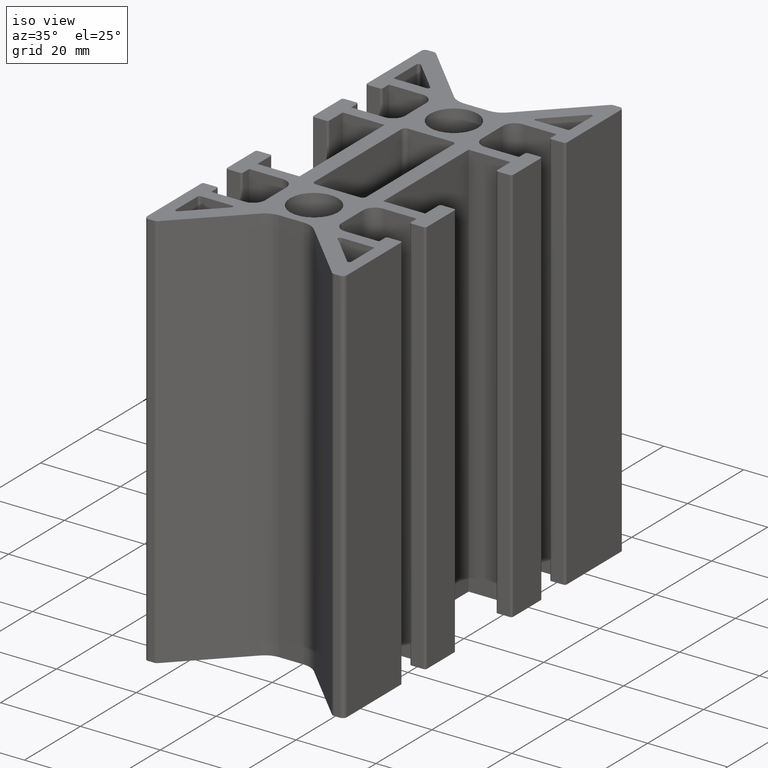
[diagram: clean part render]
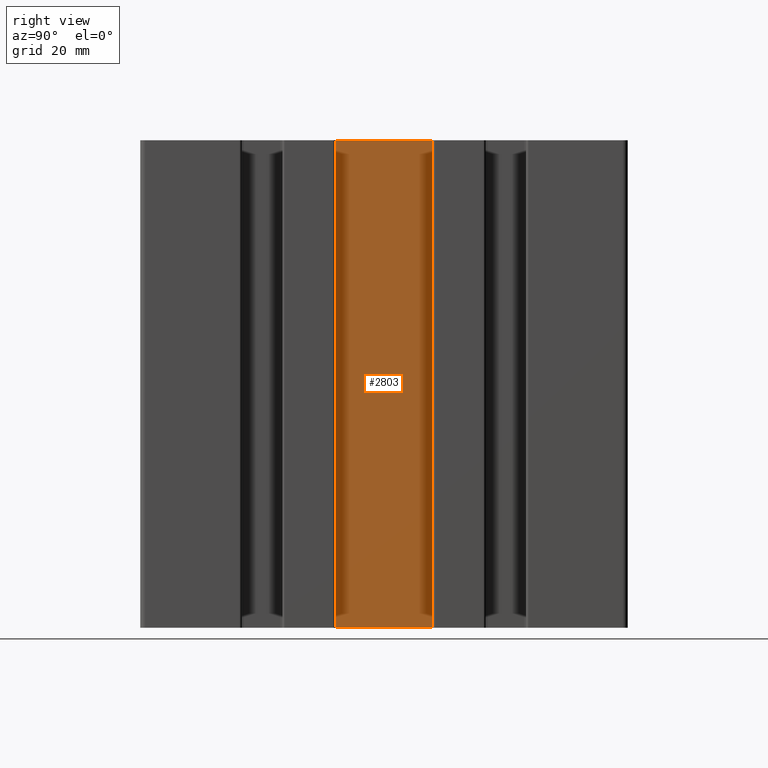
[diagram: tour spotlight — one face highlighted and labeled with its STEP entity id]
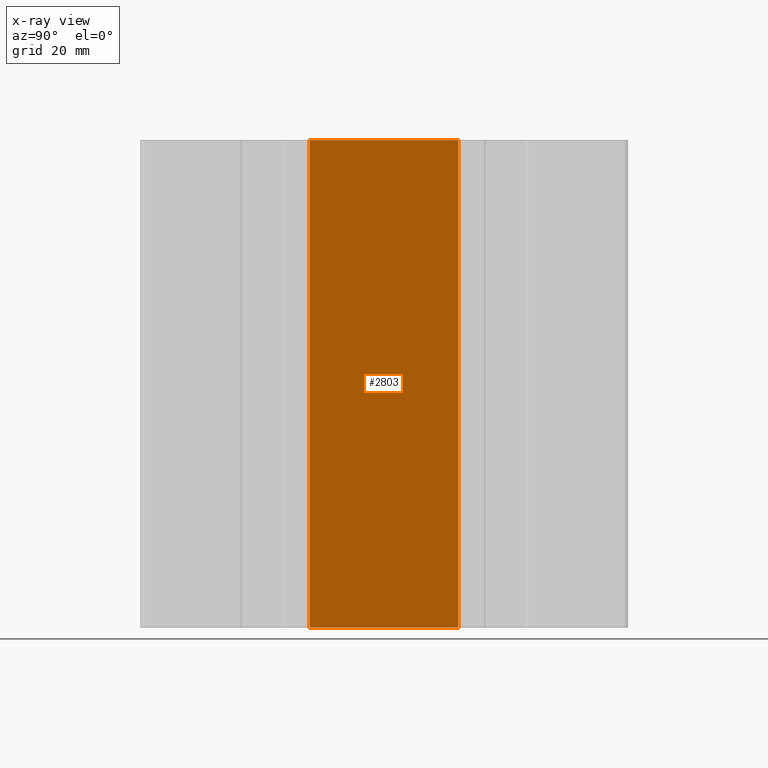
[diagram: x-ray of the same camera — body ghosted, this tour face saturated]
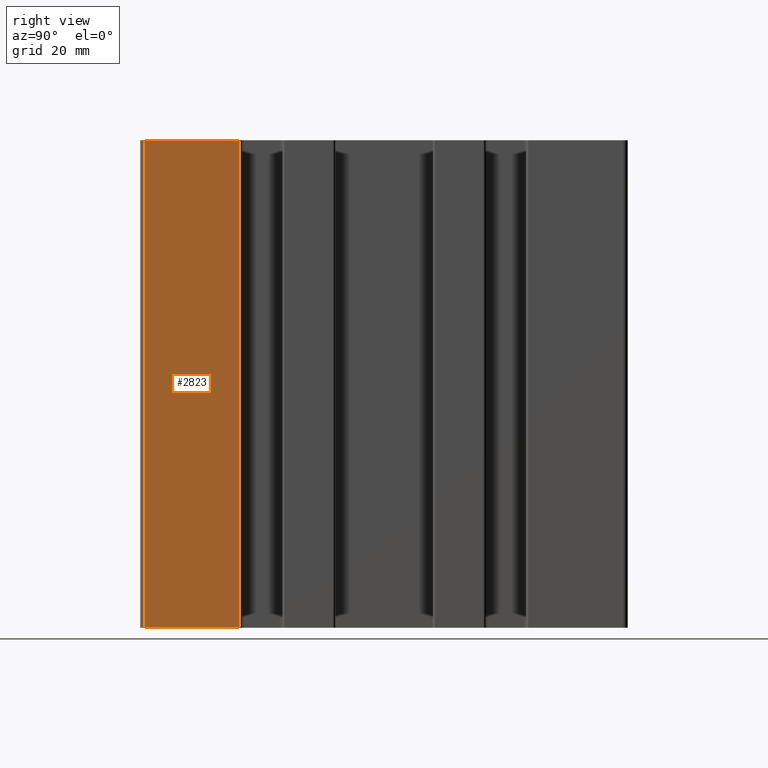
[diagram: tour spotlight — one face highlighted and labeled with its STEP entity id]
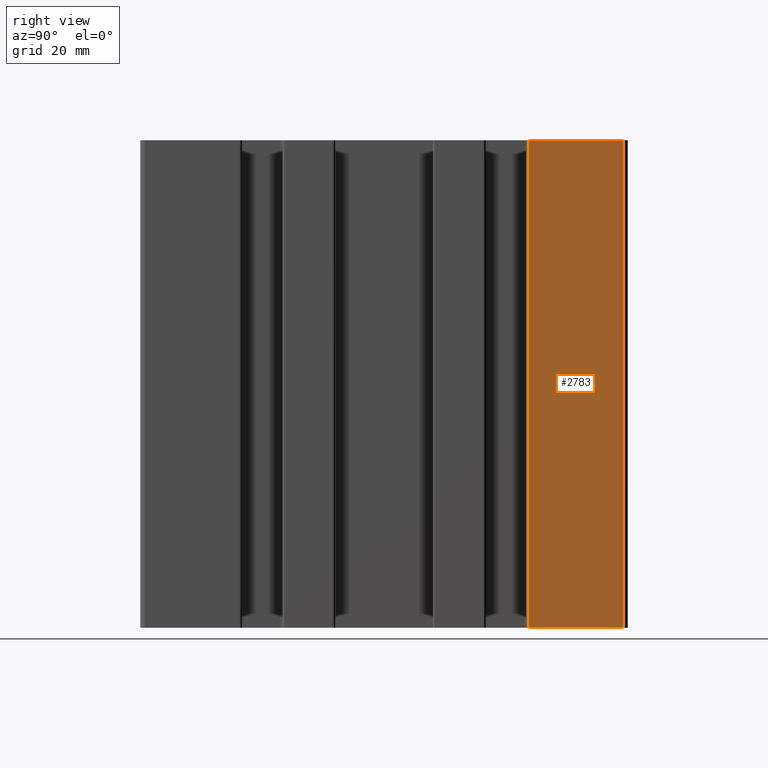
[diagram: tour spotlight — one face highlighted and labeled with its STEP entity id]
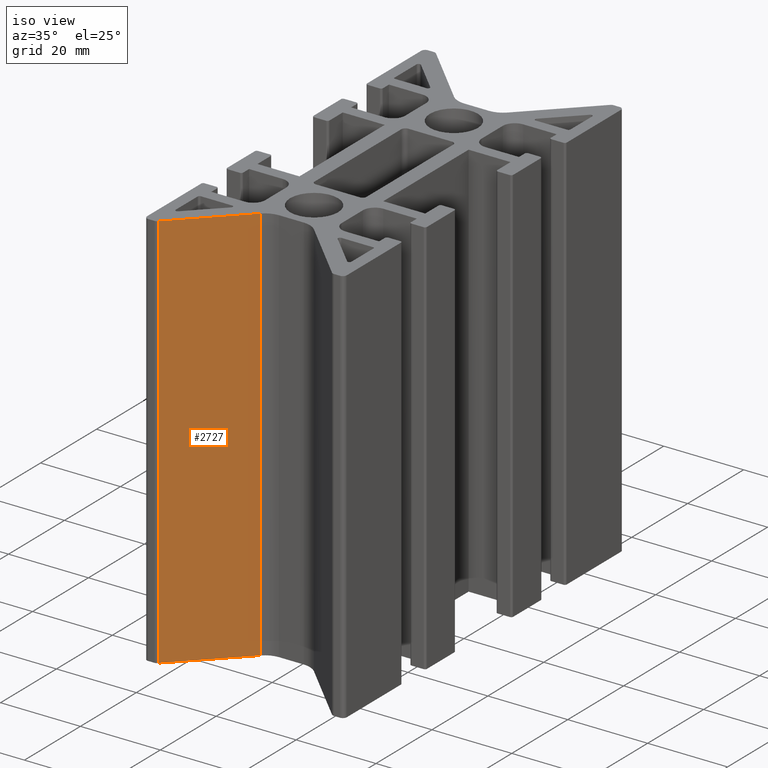
[diagram: tour spotlight — one face highlighted and labeled with its STEP entity id]
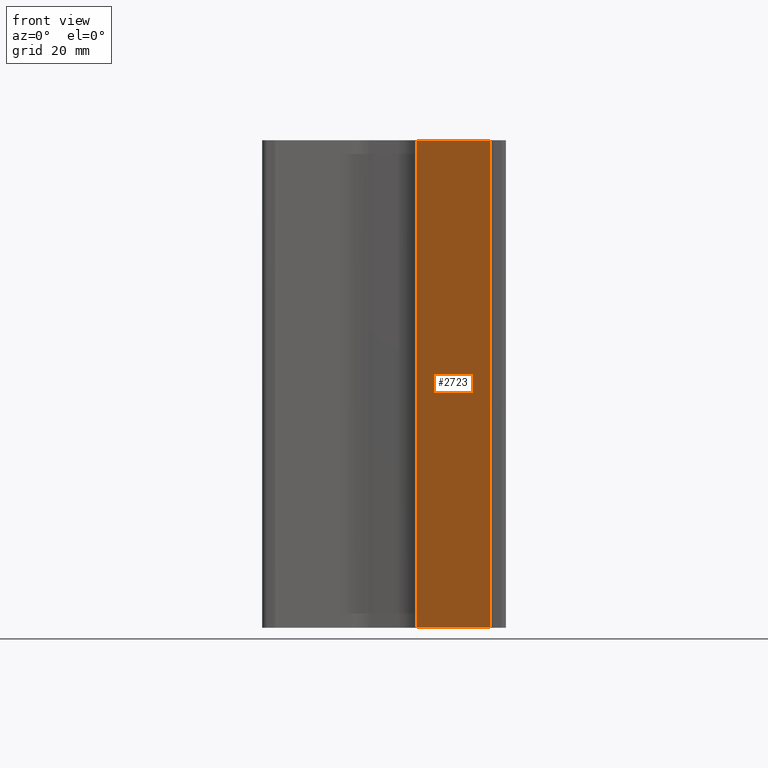
[diagram: tour spotlight — one face highlighted and labeled with its STEP entity id]
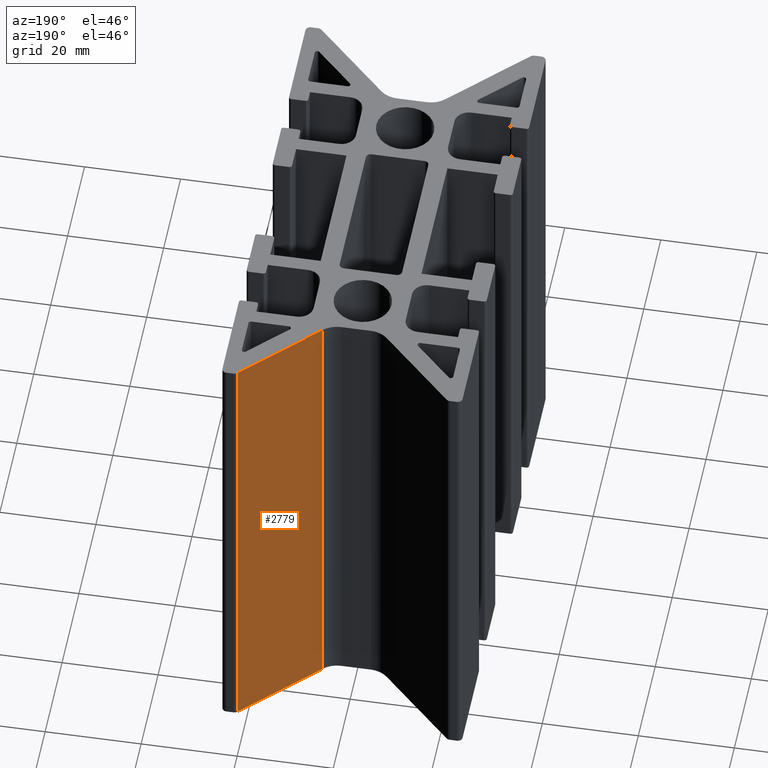
[diagram: tour spotlight — one face highlighted and labeled with its STEP entity id]
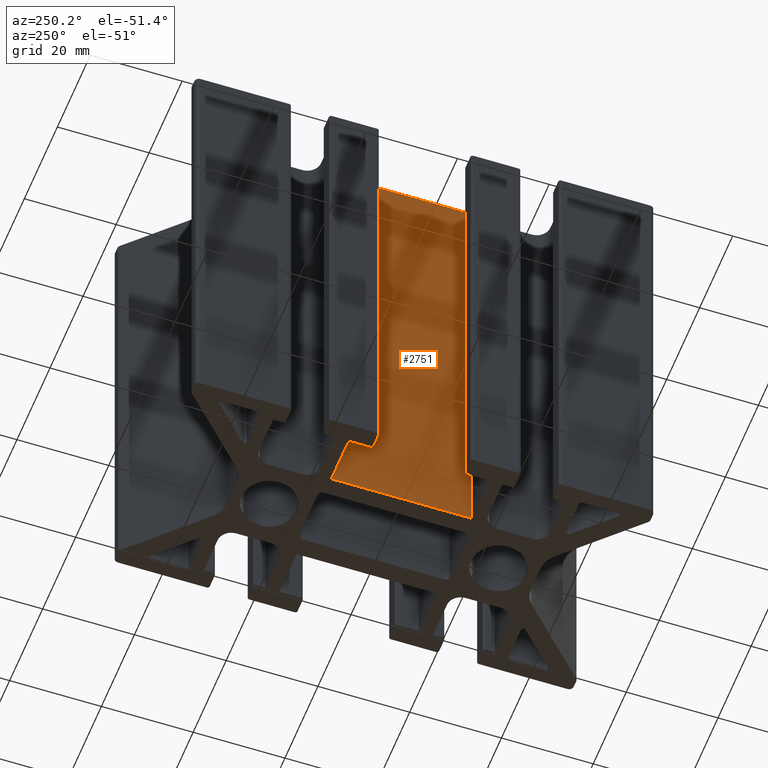
[diagram: tour spotlight — one face highlighted and labeled with its STEP entity id]
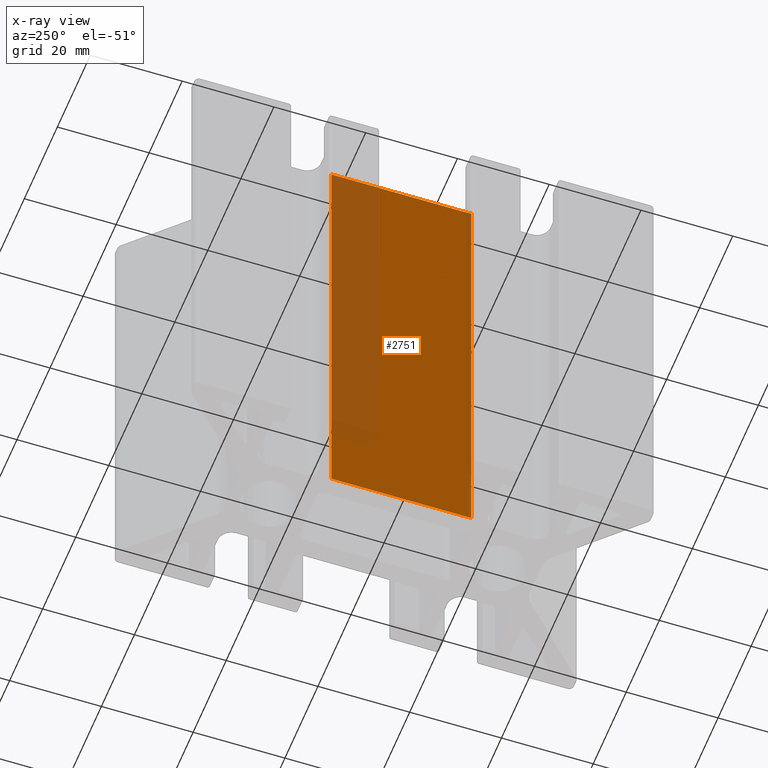
[diagram: x-ray of the same camera — body ghosted, this tour face saturated]
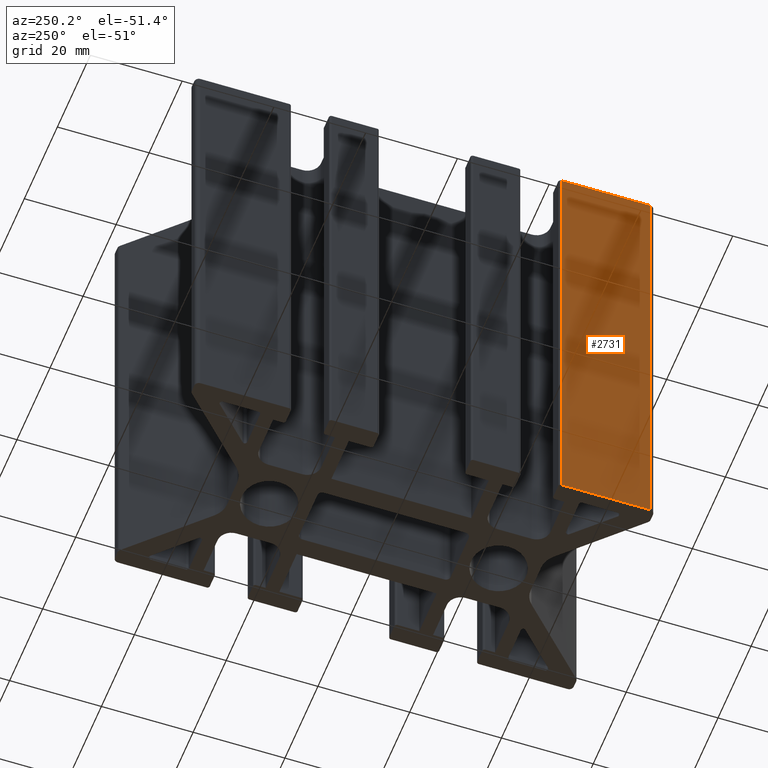
[diagram: tour spotlight — one face highlighted and labeled with its STEP entity id]
A machine part: a face-by-face anatomy tour. The part has 140 B-rep faces; the first image is the clean iso view, then the 8 largest visible faces are spotlighted one at a time (largest first), each with its STEP entity span.

Face 1 — right view, entity #2803. An x-ray twin of the same camera follows (body ghosted, this face saturated) — the face is partly hidden behind the body. In plain terms, the highlighted planar face has unit normal (1, 0, 0).
Definition (entity closure, byte-faithful):
#93=PLANE('',#3082);
#225=FACE_OUTER_BOUND('',#372,.T.);
#372=EDGE_LOOP('',(#2401,#2402,#2403,#2404));
#639=LINE('',#4308,#929);
#781=LINE('',#4679,#1071);
#782=LINE('',#4682,#1072);
#783=LINE('',#4683,#1073);
#929=VECTOR('',#3442,10.);
#1071=VECTOR('',#3838,10.);
#1072=VECTOR('',#3841,10.);
#1073=VECTOR('',#3842,10.);
#1257=VERTEX_POINT('',#4305);
#1258=VERTEX_POINT('',#4307);
#1360=VERTEX_POINT('',#4677);
#1361=VERTEX_POINT('',#4681);
#1567=EDGE_CURVE('',#1257,#1258,#639,.T.);
#1753=EDGE_CURVE('',#1257,#1360,#781,.T.);
#1754=EDGE_CURVE('',#1361,#1360,#782,.T.);
#1755=EDGE_CURVE('',#1258,#1361,#783,.T.);
#2401=ORIENTED_EDGE('',*,*,#1753,.T.);
#2402=ORIENTED_EDGE('',*,*,#1754,.F.);
#2403=ORIENTED_EDGE('',*,*,#1755,.F.);
#2404=ORIENTED_EDGE('',*,*,#1567,.F.);
#2803=ADVANCED_FACE('',(#225),#93,.T.);
#3082=AXIS2_PLACEMENT_3D('',#4680,#3839,#3840);
#3442=DIRECTION('',(2.18404529434441E-16,-1.,0.));
#3838=DIRECTION('',(0.,0.,1.));
#3839=DIRECTION('center_axis',(1.,2.18404529434441E-16,0.));
#3840=DIRECTION('ref_axis',(-2.18404529434441E-16,1.,0.));
#3841=DIRECTION('',(-2.18404529434441E-16,1.,0.));
#3842=DIRECTION('',(0.,0.,1.));
#4305=CARTESIAN_POINT('',(10.4999999999788,15.2500000000016,-50.));
#4307=CARTESIAN_POINT('',(10.4999999999788,-15.2500000000005,-50.));
#4308=CARTESIAN_POINT('',(10.4999999999788,-15.2500000000005,-50.));
#4677=CARTESIAN_POINT('',(10.4999999999788,15.2500000000016,50.));
#4679=CARTESIAN_POINT('',(10.4999999999788,15.2500000000016,0.));
#4680=CARTESIAN_POINT('Origin',(10.4999999999788,-15.2500000000005,0.));
#4681=CARTESIAN_POINT('',(10.4999999999788,-15.2500000000005,50.));
#4682=CARTESIAN_POINT('',(10.4999999999788,-15.2500000000005,50.));
#4683=CARTESIAN_POINT('',(10.4999999999788,-15.2500000000005,0.));

Face 2 — right view, entity #2823. In plain terms, the highlighted planar face has unit normal (1, 0, 0).
Definition (entity closure, byte-faithful):
#105=PLANE('',#3110);
#245=FACE_OUTER_BOUND('',#392,.T.);
#392=EDGE_LOOP('',(#2481,#2482,#2483,#2484));
#591=LINE('',#4140,#881);
#651=LINE('',#4348,#941);
#813=LINE('',#4759,#1103);
#814=LINE('',#4761,#1104);
#881=VECTOR('',#3322,10.);
#941=VECTOR('',#3472,10.);
#1103=VECTOR('',#3926,10.);
#1104=VECTOR('',#3929,10.);
#1173=VERTEX_POINT('',#4138);
#1174=VERTEX_POINT('',#4139);
#1277=VERTEX_POINT('',#4347);
#1380=VERTEX_POINT('',#4757);
#1483=EDGE_CURVE('',#1173,#1174,#591,.T.);
#1587=EDGE_CURVE('',#1277,#1174,#651,.T.);
#1793=EDGE_CURVE('',#1173,#1380,#813,.T.);
#1794=EDGE_CURVE('',#1277,#1380,#814,.T.);
#2481=ORIENTED_EDGE('',*,*,#1793,.T.);
#2482=ORIENTED_EDGE('',*,*,#1794,.F.);
#2483=ORIENTED_EDGE('',*,*,#1587,.T.);
#2484=ORIENTED_EDGE('',*,*,#1483,.F.);
#2823=ADVANCED_FACE('',(#245),#105,.T.);
#3110=AXIS2_PLACEMENT_3D('',#4760,#3927,#3928);
#3322=DIRECTION('',(4.59006935245935E-16,-1.,0.));
#3472=DIRECTION('',(0.,0.,-1.));
#3926=DIRECTION('',(0.,0.,1.));
#3927=DIRECTION('center_axis',(1.,4.59006935245935E-16,0.));
#3928=DIRECTION('ref_axis',(-4.59006935245935E-16,1.,0.));
#3929=DIRECTION('',(-4.59006935245935E-16,1.,0.));
#4138=CARTESIAN_POINT('',(24.9999999999838,-29.6499999999862,-50.));
#4139=CARTESIAN_POINT('',(24.9999999999838,-48.9999999999697,-50.));
#4140=CARTESIAN_POINT('',(24.9999999999838,-48.9999999999697,-50.));
#4347=CARTESIAN_POINT('',(24.9999999999838,-48.9999999999697,50.));
#4348=CARTESIAN_POINT('',(24.9999999999838,-48.9999999999697,0.));
#4757=CARTESIAN_POINT('',(24.9999999999838,-29.6499999999862,50.));
#4759=CARTESIAN_POINT('',(24.9999999999838,-29.6499999999862,0.));
#4760=CARTESIAN_POINT('Origin',(24.9999999999838,-48.9999999999697,0.));
#4761=CARTESIAN_POINT('',(24.9999999999838,-48.9999999999697,50.));

Face 3 — right view, entity #2783. In plain terms, the highlighted planar face has unit normal (1, 0, 0).
Definition (entity closure, byte-faithful):
#81=PLANE('',#3054);
#205=FACE_OUTER_BOUND('',#352,.T.);
#352=EDGE_LOOP('',(#2321,#2322,#2323,#2324));
#627=LINE('',#4268,#917);
#749=LINE('',#4599,#1039);
#750=LINE('',#4602,#1040);
#751=LINE('',#4603,#1041);
#917=VECTOR('',#3414,10.);
#1039=VECTOR('',#3750,10.);
#1040=VECTOR('',#3753,10.);
#1041=VECTOR('',#3754,10.);
#1237=VERTEX_POINT('',#4265);
#1238=VERTEX_POINT('',#4267);
#1340=VERTEX_POINT('',#4597);
#1341=VERTEX_POINT('',#4601);
#1547=EDGE_CURVE('',#1237,#1238,#627,.T.);
#1713=EDGE_CURVE('',#1237,#1340,#749,.T.);
#1714=EDGE_CURVE('',#1341,#1340,#750,.T.);
#1715=EDGE_CURVE('',#1238,#1341,#751,.T.);
#2321=ORIENTED_EDGE('',*,*,#1713,.T.);
#2322=ORIENTED_EDGE('',*,*,#1714,.F.);
#2323=ORIENTED_EDGE('',*,*,#1715,.F.);
#2324=ORIENTED_EDGE('',*,*,#1547,.F.);
#2783=ADVANCED_FACE('',(#205),#81,.T.);
#3054=AXIS2_PLACEMENT_3D('',#4600,#3751,#3752);
#3414=DIRECTION('',(2.29503467622934E-16,-1.,0.));
#3750=DIRECTION('',(0.,0.,1.));
#3751=DIRECTION('center_axis',(1.,2.29503467622934E-16,0.));
#3752=DIRECTION('ref_axis',(-2.29503467622934E-16,1.,0.));
#3753=DIRECTION('',(-2.29503467622934E-16,1.,0.));
#3754=DIRECTION('',(0.,0.,1.));
#4265=CARTESIAN_POINT('',(24.9999999999838,48.9999999999982,-50.));
#4267=CARTESIAN_POINT('',(24.9999999999838,29.650000000012,-50.));
#4268=CARTESIAN_POINT('',(24.9999999999838,29.650000000012,-50.));
#4597=CARTESIAN_POINT('',(24.9999999999838,48.9999999999982,50.));
#4599=CARTESIAN_POINT('',(24.9999999999838,48.9999999999982,0.));
#4600=CARTESIAN_POINT('Origin',(24.9999999999838,29.650000000012,0.));
#4601=CARTESIAN_POINT('',(24.9999999999838,29.650000000012,50.));
#4602=CARTESIAN_POINT('',(24.9999999999838,29.650000000012,50.));
#4603=CARTESIAN_POINT('',(24.9999999999838,29.650000000012,0.));

Face 4 — iso view, entity #2727. In plain terms, the highlighted planar face has unit normal (0.7071, -0.7071, 0).
Definition (entity closure, byte-faithful):
#49=PLANE('',#2974);
#149=FACE_OUTER_BOUND('',#296,.T.);
#296=EDGE_LOOP('',(#2097,#2098,#2099,#2100));
#595=LINE('',#4156,#885);
#661=LINE('',#4375,#951);
#662=LINE('',#4378,#952);
#663=LINE('',#4379,#953);
#885=VECTOR('',#3334,10.);
#951=VECTOR('',#3502,10.);
#952=VECTOR('',#3505,10.);
#953=VECTOR('',#3506,10.);
#1181=VERTEX_POINT('',#4153);
#1182=VERTEX_POINT('',#4155);
#1284=VERTEX_POINT('',#4373);
#1285=VERTEX_POINT('',#4377);
#1491=EDGE_CURVE('',#1181,#1182,#595,.T.);
#1601=EDGE_CURVE('',#1181,#1284,#661,.T.);
#1602=EDGE_CURVE('',#1285,#1284,#662,.T.);
#1603=EDGE_CURVE('',#1182,#1285,#663,.T.);
#2097=ORIENTED_EDGE('',*,*,#1601,.T.);
#2098=ORIENTED_EDGE('',*,*,#1602,.F.);
#2099=ORIENTED_EDGE('',*,*,#1603,.F.);
#2100=ORIENTED_EDGE('',*,*,#1491,.F.);
#2727=ADVANCED_FACE('',(#149),#49,.T.);
#2974=AXIS2_PLACEMENT_3D('',#4376,#3503,#3504);
#3334=DIRECTION('',(-0.707106781186628,-0.707106781186467,0.));
#3502=DIRECTION('',(0.,0.,1.));
#3503=DIRECTION('center_axis',(0.707106781186467,-0.707106781186628,0.));
#3504=DIRECTION('ref_axis',(0.707106781186628,0.707106781186467,0.));
#3505=DIRECTION('',(0.707106781186628,0.707106781186467,0.));
#3506=DIRECTION('',(0.,0.,1.));
#4153=CARTESIAN_POINT('',(-6.6530066017581,-34.5644660940794,-50.));
#4155=CARTESIAN_POINT('',(-21.7501621446448,-49.6616216369626,-50.));
#4156=CARTESIAN_POINT('',(-21.7501621446448,-49.6616216369626,-50.));
#4373=CARTESIAN_POINT('',(-6.6530066017581,-34.5644660940794,50.));
#4375=CARTESIAN_POINT('',(-6.6530066017581,-34.5644660940794,0.));
#4376=CARTESIAN_POINT('Origin',(-21.7501621446448,-49.6616216369626,0.));
#4377=CARTESIAN_POINT('',(-21.7501621446448,-49.6616216369626,50.));
#4378=CARTESIAN_POINT('',(-21.7501621446448,-49.6616216369626,50.));
#4379=CARTESIAN_POINT('',(-21.7501621446448,-49.6616216369626,0.));

Face 5 — front view, entity #2723. In plain terms, the highlighted planar face has unit normal (-0.7071, -0.7071, 0).
Definition (entity closure, byte-faithful):
#47=PLANE('',#2968);
#145=FACE_OUTER_BOUND('',#292,.T.);
#292=EDGE_LOOP('',(#2081,#2082,#2083,#2084));
#593=LINE('',#4148,#883);
#655=LINE('',#4359,#945);
#656=LINE('',#4362,#946);
#657=LINE('',#4363,#947);
#883=VECTOR('',#3328,10.);
#945=VECTOR('',#3484,10.);
#946=VECTOR('',#3487,10.);
#947=VECTOR('',#3488,10.);
#1177=VERTEX_POINT('',#4145);
#1178=VERTEX_POINT('',#4147);
#1280=VERTEX_POINT('',#4357);
#1281=VERTEX_POINT('',#4361);
#1487=EDGE_CURVE('',#1177,#1178,#593,.T.);
#1593=EDGE_CURVE('',#1177,#1280,#655,.T.);
#1594=EDGE_CURVE('',#1281,#1280,#656,.T.);
#1595=EDGE_CURVE('',#1178,#1281,#657,.T.);
#2081=ORIENTED_EDGE('',*,*,#1593,.T.);
#2082=ORIENTED_EDGE('',*,*,#1594,.F.);
#2083=ORIENTED_EDGE('',*,*,#1595,.F.);
#2084=ORIENTED_EDGE('',*,*,#1487,.F.);
#2723=ADVANCED_FACE('',(#145),#47,.T.);
#2968=AXIS2_PLACEMENT_3D('',#4360,#3485,#3486);
#3328=DIRECTION('',(-0.707106781186468,0.707106781186628,0.));
#3484=DIRECTION('',(0.,0.,1.));
#3485=DIRECTION('center_axis',(-0.707106781186628,-0.707106781186468,0.));
#3486=DIRECTION('ref_axis',(0.707106781186468,-0.707106781186628,0.));
#3487=DIRECTION('',(0.707106781186468,-0.707106781186628,0.));
#3488=DIRECTION('',(0.,0.,1.));
#4145=CARTESIAN_POINT('',(21.7501621461486,-49.6616216387617,-50.));
#4147=CARTESIAN_POINT('',(6.65300660147049,-34.5644660940802,-50.));
#4148=CARTESIAN_POINT('',(6.65300660147049,-34.5644660940802,-50.));
#4357=CARTESIAN_POINT('',(21.7501621461486,-49.6616216387617,50.));
#4359=CARTESIAN_POINT('',(21.7501621461486,-49.6616216387617,0.));
#4360=CARTESIAN_POINT('Origin',(6.65300660147049,-34.5644660940802,0.));
#4361=CARTESIAN_POINT('',(6.65300660147049,-34.5644660940802,50.));
#4362=CARTESIAN_POINT('',(6.65300660147049,-34.5644660940802,50.));
#4363=CARTESIAN_POINT('',(6.65300660147049,-34.5644660940802,0.));

Face 6 — auxiliary view, entity #2779. In plain terms, the highlighted planar face has unit normal (-0.7071, 0.7071, 0).
Definition (entity closure, byte-faithful):
#79=PLANE('',#3048);
#201=FACE_OUTER_BOUND('',#348,.T.);
#348=EDGE_LOOP('',(#2305,#2306,#2307,#2308));
#625=LINE('',#4260,#915);
#743=LINE('',#4583,#1033);
#744=LINE('',#4586,#1034);
#745=LINE('',#4587,#1035);
#915=VECTOR('',#3408,10.);
#1033=VECTOR('',#3732,10.);
#1034=VECTOR('',#3735,10.);
#1035=VECTOR('',#3736,10.);
#1233=VERTEX_POINT('',#4257);
#1234=VERTEX_POINT('',#4259);
#1336=VERTEX_POINT('',#4581);
#1337=VERTEX_POINT('',#4585);
#1543=EDGE_CURVE('',#1233,#1234,#625,.T.);
#1705=EDGE_CURVE('',#1233,#1336,#743,.T.);
#1706=EDGE_CURVE('',#1337,#1336,#744,.T.);
#1707=EDGE_CURVE('',#1234,#1337,#745,.T.);
#2305=ORIENTED_EDGE('',*,*,#1705,.T.);
#2306=ORIENTED_EDGE('',*,*,#1706,.F.);
#2307=ORIENTED_EDGE('',*,*,#1707,.F.);
#2308=ORIENTED_EDGE('',*,*,#1543,.F.);
#2779=ADVANCED_FACE('',(#201),#79,.T.);
#3048=AXIS2_PLACEMENT_3D('',#4584,#3733,#3734);
#3408=DIRECTION('',(0.707106781186628,0.707106781186467,0.));
#3732=DIRECTION('',(0.,0.,1.));
#3733=DIRECTION('center_axis',(-0.707106781186467,0.707106781186628,0.));
#3734=DIRECTION('ref_axis',(-0.707106781186628,-0.707106781186467,0.));
#3735=DIRECTION('',(-0.707106781186628,-0.707106781186467,0.));
#3736=DIRECTION('',(0.,0.,1.));
#4257=CARTESIAN_POINT('',(6.65427531335953,34.5644660941237,-50.));
#4259=CARTESIAN_POINT('',(21.7514308557036,49.6616216364643,-50.));
#4260=CARTESIAN_POINT('',(21.7514308557036,49.6616216364643,-50.));
#4581=CARTESIAN_POINT('',(6.65427531335953,34.5644660941237,50.));
#4583=CARTESIAN_POINT('',(6.65427531335953,34.5644660941237,0.));
#4584=CARTESIAN_POINT('Origin',(21.7514308557036,49.6616216364643,0.));
#4585=CARTESIAN_POINT('',(21.7514308557036,49.6616216364643,50.));
#4586=CARTESIAN_POINT('',(21.7514308557036,49.6616216364643,50.));
#4587=CARTESIAN_POINT('',(21.7514308557036,49.6616216364643,0.));

Face 7 — auxiliary view, entity #2751. An x-ray twin of the same camera follows (body ghosted, this face saturated) — the face is partly hidden behind the body. In plain terms, the highlighted planar face has unit normal (-1, -0, 0).
Definition (entity closure, byte-faithful):
#63=PLANE('',#3008);
#173=FACE_OUTER_BOUND('',#320,.T.);
#320=EDGE_LOOP('',(#2193,#2194,#2195,#2196));
#609=LINE('',#4204,#899);
#699=LINE('',#4471,#989);
#700=LINE('',#4474,#990);
#701=LINE('',#4475,#991);
#899=VECTOR('',#3368,10.);
#989=VECTOR('',#3608,10.);
#990=VECTOR('',#3611,10.);
#991=VECTOR('',#3612,10.);
#1205=VERTEX_POINT('',#4201);
#1206=VERTEX_POINT('',#4203);
#1308=VERTEX_POINT('',#4469);
#1309=VERTEX_POINT('',#4473);
#1515=EDGE_CURVE('',#1205,#1206,#609,.T.);
#1649=EDGE_CURVE('',#1205,#1308,#699,.T.);
#1650=EDGE_CURVE('',#1309,#1308,#700,.T.);
#1651=EDGE_CURVE('',#1206,#1309,#701,.T.);
#2193=ORIENTED_EDGE('',*,*,#1649,.T.);
#2194=ORIENTED_EDGE('',*,*,#1650,.F.);
#2195=ORIENTED_EDGE('',*,*,#1651,.F.);
#2196=ORIENTED_EDGE('',*,*,#1515,.F.);
#2751=ADVANCED_FACE('',(#173),#63,.T.);
#3008=AXIS2_PLACEMENT_3D('',#4472,#3609,#3610);
#3368=DIRECTION('',(-3.64007549057436E-16,1.,0.));
#3608=DIRECTION('',(0.,0.,1.));
#3609=DIRECTION('center_axis',(-1.,-3.64007549057436E-16,0.));
#3610=DIRECTION('ref_axis',(3.64007549057436E-16,-1.,0.));
#3611=DIRECTION('',(3.64007549057436E-16,-1.,0.));
#3612=DIRECTION('',(0.,0.,1.));
#4201=CARTESIAN_POINT('',(-10.5000000000204,-15.2500000000052,-50.));
#4203=CARTESIAN_POINT('',(-10.5000000000204,15.2499999999941,-50.));
#4204=CARTESIAN_POINT('',(-10.5000000000204,15.2499999999941,-50.));
#4469=CARTESIAN_POINT('',(-10.5000000000204,-15.2500000000052,50.));
#4471=CARTESIAN_POINT('',(-10.5000000000204,-15.2500000000052,0.));
#4472=CARTESIAN_POINT('Origin',(-10.5000000000204,15.2499999999941,0.));
#4473=CARTESIAN_POINT('',(-10.5000000000204,15.2499999999941,50.));
#4474=CARTESIAN_POINT('',(-10.5000000000204,15.2499999999941,50.));
#4475=CARTESIAN_POINT('',(-10.5000000000204,15.2499999999941,0.));

Face 8 — auxiliary view, entity #2731. In plain terms, the highlighted planar face has unit normal (-1, 0, 0).
Definition (entity closure, byte-faithful):
#51=PLANE('',#2980);
#153=FACE_OUTER_BOUND('',#300,.T.);
#300=EDGE_LOOP('',(#2113,#2114,#2115,#2116));
#597=LINE('',#4164,#887);
#667=LINE('',#4391,#957);
#668=LINE('',#4394,#958);
#669=LINE('',#4395,#959);
#887=VECTOR('',#3340,10.);
#957=VECTOR('',#3520,10.);
#958=VECTOR('',#3523,10.);
#959=VECTOR('',#3524,10.);
#1185=VERTEX_POINT('',#4161);
#1186=VERTEX_POINT('',#4163);
#1288=VERTEX_POINT('',#4389);
#1289=VERTEX_POINT('',#4393);
#1495=EDGE_CURVE('',#1185,#1186,#597,.T.);
#1609=EDGE_CURVE('',#1185,#1288,#667,.T.);
#1610=EDGE_CURVE('',#1289,#1288,#668,.T.);
#1611=EDGE_CURVE('',#1186,#1289,#669,.T.);
#2113=ORIENTED_EDGE('',*,*,#1609,.T.);
#2114=ORIENTED_EDGE('',*,*,#1610,.F.);
#2115=ORIENTED_EDGE('',*,*,#1611,.F.);
#2116=ORIENTED_EDGE('',*,*,#1495,.F.);
#2731=ADVANCED_FACE('',(#153),#51,.T.);
#2980=AXIS2_PLACEMENT_3D('',#4392,#3521,#3522);
#3340=DIRECTION('',(0.,1.,0.));
#3520=DIRECTION('',(0.,0.,1.));
#3521=DIRECTION('center_axis',(-1.,0.,0.));
#3522=DIRECTION('ref_axis',(0.,-1.,0.));
#3523=DIRECTION('',(0.,-1.,0.));
#3524=DIRECTION('',(0.,0.,1.));
#4161=CARTESIAN_POINT('',(-25.0000000000018,-48.9999999999697,-50.));
#4163=CARTESIAN_POINT('',(-25.0000000000018,-29.6499999999862,-50.));
#4164=CARTESIAN_POINT('',(-25.0000000000018,-29.6499999999862,-50.));
#4389=CARTESIAN_POINT('',(-25.0000000000018,-48.9999999999697,50.));
#4391=CARTESIAN_POINT('',(-25.0000000000018,-48.9999999999697,0.));
#4392=CARTESIAN_POINT('Origin',(-25.0000000000018,-29.6499999999862,0.));
#4393=CARTESIAN_POINT('',(-25.0000000000018,-29.6499999999862,50.));
#4394=CARTESIAN_POINT('',(-25.0000000000018,-29.6499999999862,50.));
#4395=CARTESIAN_POINT('',(-25.0000000000018,-29.6499999999862,0.));